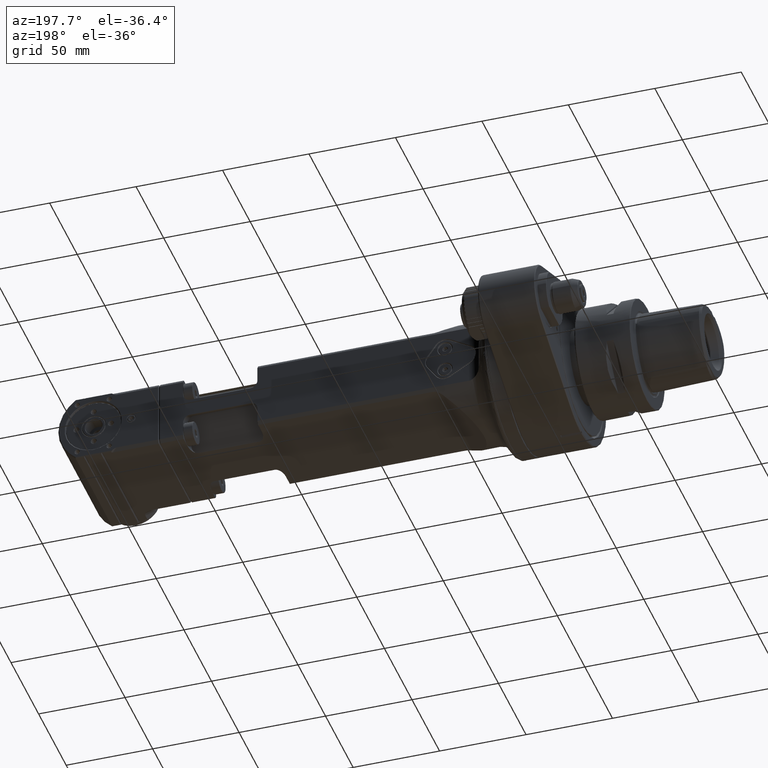
[diagram: clean part render]
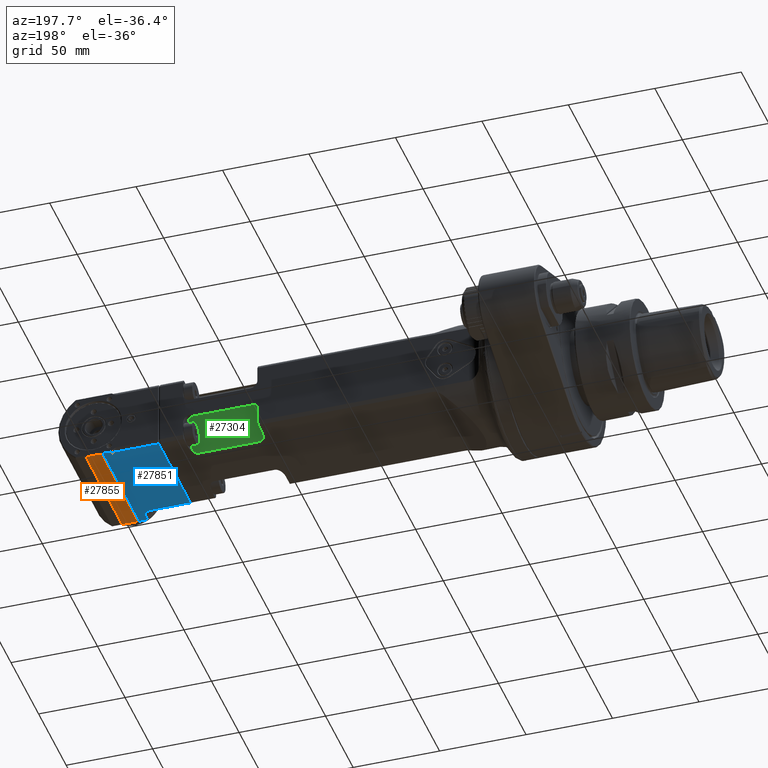
[diagram: same view with three faces highlighted in distinct colors, each labeled with its STEP entity id]
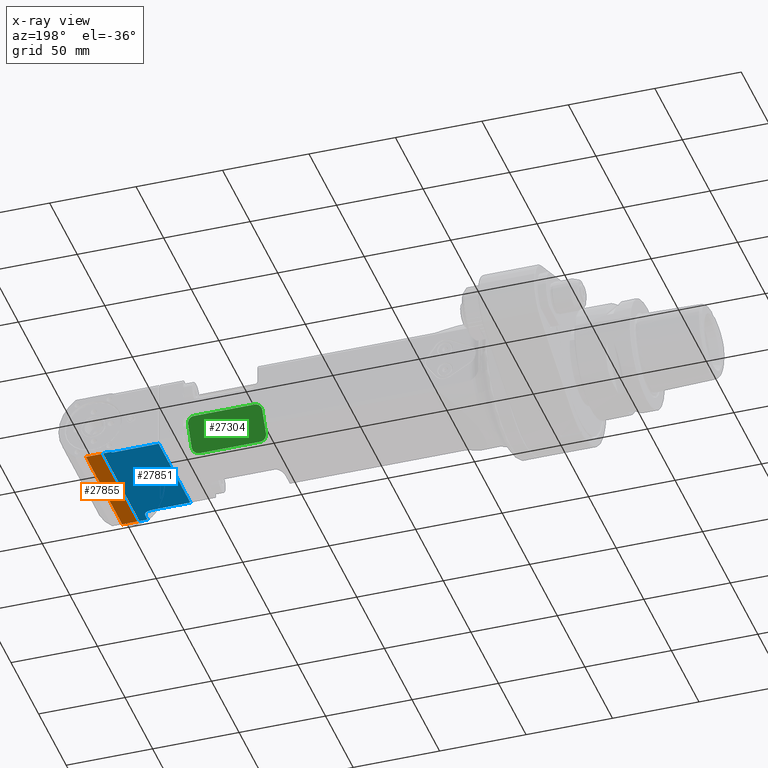
[diagram: x-ray of the same camera — body ghosted, the three highlighted faces saturated]
A machine part, auxiliary view with three faces highlighted in distinct colors.
The next image is the same camera in x-ray (body ghosted, the three faces saturated) — at least one of them is partly hidden behind the body in this view.
Their STEP definitions:

[orange] entity #27855 — the highlighted planar face has unit normal (-0, 0, 1).
#3414=FACE_OUTER_BOUND('',#5086,.T.);
#5086=EDGE_LOOP('',(#23690,#23691,#23692,#23693));
#6451=LINE('',#50856,#9055);
#6452=LINE('',#50859,#9056);
#7713=LINE('',#54464,#10317);
#7714=LINE('',#54466,#10318);
#9055=VECTOR('',#34252,8.8);
#9056=VECTOR('',#34255,65.8);
#10317=VECTOR('',#36672,65.8);
#10318=VECTOR('',#36675,8.8);
#11896=VERTEX_POINT('',#50852);
#11897=VERTEX_POINT('',#50854);
#11898=VERTEX_POINT('',#50858);
#12835=VERTEX_POINT('',#54462);
#15145=EDGE_CURVE('',#11897,#11896,#6451,.T.);
#15146=EDGE_CURVE('',#11896,#11898,#6452,.T.);
#16570=EDGE_CURVE('',#11897,#12835,#7713,.T.);
#16571=EDGE_CURVE('',#11898,#12835,#7714,.T.);
#23690=ORIENTED_EDGE('',*,*,#15145,.F.);
#23691=ORIENTED_EDGE('',*,*,#16570,.T.);
#23692=ORIENTED_EDGE('',*,*,#16571,.F.);
#23693=ORIENTED_EDGE('',*,*,#15146,.F.);
#26533=PLANE('',#30136);
#27855=ADVANCED_FACE('',(#3414),#26533,.F.);
#30136=AXIS2_PLACEMENT_3D('',#54465,#36673,#36674);
#34252=DIRECTION('',(0.,1.,0.));
#34255=DIRECTION('',(1.,0.,0.));
#36672=DIRECTION('',(1.,0.,0.));
#36673=DIRECTION('center_axis',(0.,0.,-1.));
#36674=DIRECTION('ref_axis',(0.,-1.,0.));
#36675=DIRECTION('',(0.,-1.,0.));
#50852=CARTESIAN_POINT('',(-36.4,269.4,20.1));
#50854=CARTESIAN_POINT('',(-36.4,260.6,20.1));
#50856=CARTESIAN_POINT('',(-36.4,260.6,20.1));
#50858=CARTESIAN_POINT('',(29.4,269.4,20.1));
#50859=CARTESIAN_POINT('',(-36.4,269.4,20.1));
#54462=CARTESIAN_POINT('',(29.4,260.6,20.1));
#54464=CARTESIAN_POINT('',(-36.4,260.6,20.1));
#54465=CARTESIAN_POINT('Origin',(-37.,269.4,20.1));
#54466=CARTESIAN_POINT('',(29.4,269.4,20.1));

[blue] entity #27851 — the highlighted planar face has unit normal (0, -0, -1).
#359=B_SPLINE_CURVE_WITH_KNOTS('',3,(#54373,#54374,#54375,#54376,#54377,
#54378,#54379,#54380,#54381,#54382,#54383,#54384),.UNSPECIFIED.,.F.,.F.,
(4,2,2,2,2,4),(1.0000001164299E-6,0.117744469966522,0.2263129312684,0.370935934495753,
0.54132729228853,0.74186469075418),.UNSPECIFIED.);
#360=B_SPLINE_CURVE_WITH_KNOTS('',3,(#54386,#54387,#54388,#54389,#54390,
#54391,#54392,#54393,#54394,#54395,#54396,#54397,#54398,#54399,#54400,#54401,
#54402,#54403,#54404,#54405,#54406,#54407,#54408,#54409,#54410,#54411,#54412,
#54413,#54414,#54415,#54416,#54417,#54418,#54419,#54420,#54421,#54422,#54423,
#54424,#54425,#54426,#54427,#54428,#54429,#54430,#54431,#54432,#54433,#54434,
#54435,#54436,#54437,#54438,#54439,#54440,#54441,#54442,#54443,#54444,#54445,
#54446,#54447,#54448,#54449),.UNSPECIFIED.,.F.,.F.,(4,3,3,3,3,3,3,3,3,3,
3,3,3,3,3,3,3,3,3,3,3,4),(0.,0.05,0.1,0.15,0.2,0.25,0.3,0.35,0.4,0.45,0.5,
0.55,0.6,0.618025400904375,0.65,0.7,0.75,0.8,0.85,0.9,0.95,1.),
 .UNSPECIFIED.);
#3410=FACE_OUTER_BOUND('',#5082,.T.);
#5082=EDGE_LOOP('',(#23668,#23669,#23670,#23671,#23672,#23673,#23674,#23675,
#23676,#23677));
#6410=LINE('',#50487,#9014);
#6431=LINE('',#50693,#9035);
#7703=LINE('',#54366,#10307);
#7704=LINE('',#54370,#10308);
#7705=LINE('',#54372,#10309);
#7706=LINE('',#54451,#10310);
#7707=LINE('',#54453,#10311);
#7708=LINE('',#54454,#10312);
#9014=VECTOR('',#34121,10.);
#9035=VECTOR('',#34208,10.);
#10307=VECTOR('',#36652,10.);
#10308=VECTOR('',#36655,10.);
#10309=VECTOR('',#36656,10.);
#10310=VECTOR('',#36657,0.1170117339723);
#10311=VECTOR('',#36658,4.75);
#10312=VECTOR('',#36659,66.);
#11831=VERTEX_POINT('',#50418);
#11852=VERTEX_POINT('',#50486);
#11872=VERTEX_POINT('',#50692);
#12828=VERTEX_POINT('',#54352);
#12829=VERTEX_POINT('',#54368);
#12830=VERTEX_POINT('',#54369);
#12831=VERTEX_POINT('',#54371);
#12832=VERTEX_POINT('',#54385);
#12833=VERTEX_POINT('',#54450);
#12834=VERTEX_POINT('',#54452);
#15074=EDGE_CURVE('',#11852,#11831,#6410,.T.);
#15113=EDGE_CURVE('',#11852,#11872,#6431,.T.);
#16557=EDGE_CURVE('',#11831,#12828,#7703,.T.);
#16558=EDGE_CURVE('',#12829,#12830,#7704,.T.);
#16559=EDGE_CURVE('',#12830,#12831,#7705,.T.);
#16560=EDGE_CURVE('',#12831,#11872,#359,.T.);
#16561=EDGE_CURVE('',#12828,#12832,#360,.T.);
#16562=EDGE_CURVE('',#12832,#12833,#7706,.T.);
#16563=EDGE_CURVE('',#12834,#12833,#7707,.T.);
#16564=EDGE_CURVE('',#12829,#12834,#7708,.T.);
#23668=ORIENTED_EDGE('',*,*,#16558,.T.);
#23669=ORIENTED_EDGE('',*,*,#16559,.T.);
#23670=ORIENTED_EDGE('',*,*,#16560,.T.);
#23671=ORIENTED_EDGE('',*,*,#15113,.F.);
#23672=ORIENTED_EDGE('',*,*,#15074,.T.);
#23673=ORIENTED_EDGE('',*,*,#16557,.T.);
#23674=ORIENTED_EDGE('',*,*,#16561,.T.);
#23675=ORIENTED_EDGE('',*,*,#16562,.T.);
#23676=ORIENTED_EDGE('',*,*,#16563,.F.);
#23677=ORIENTED_EDGE('',*,*,#16564,.F.);
#26529=PLANE('',#30131);
#27851=ADVANCED_FACE('',(#3410),#26529,.T.);
#30131=AXIS2_PLACEMENT_3D('',#54367,#36653,#36654);
#34121=DIRECTION('',(1.,0.,0.));
#34208=DIRECTION('',(0.,1.,0.));
#36652=DIRECTION('',(0.,1.,0.));
#36653=DIRECTION('center_axis',(0.,0.,1.));
#36654=DIRECTION('ref_axis',(0.,-1.,0.));
#36655=DIRECTION('',(0.,-1.,0.));
#36656=DIRECTION('',(1.,0.,0.));
#36657=DIRECTION('',(0.999999999999999,3.967709970485E-8,-6.51693630069599E-9));
#36658=DIRECTION('',(0.,-1.,0.));
#36659=DIRECTION('',(1.,0.,0.));
#50418=CARTESIAN_POINT('',(28.7228132359344,227.499999998978,19.9999999986768));
#50486=CARTESIAN_POINT('',(-28.7228132356617,227.499999999313,19.9999999989459));
#50487=CARTESIAN_POINT('',(-25.,227.5,20.));
#50692=CARTESIAN_POINT('',(-28.7228011514097,249.449631099454,20.000000011776));
#50693=CARTESIAN_POINT('',(-28.7228132326901,152.65,20.));
#54352=CARTESIAN_POINT('',(28.722813180533,253.8498009654,19.9999999936971));
#54366=CARTESIAN_POINT('',(28.7228132326901,152.65,20.));
#54367=CARTESIAN_POINT('Origin',(-50.,284.8639702343,20.));
#54368=CARTESIAN_POINT('',(-36.5,259.5,20.));
#54369=CARTESIAN_POINT('',(-36.4999857299406,254.750019458717,20.0000064861694));
#54370=CARTESIAN_POINT('',(-36.5,271.0363974235,20.));
#54371=CARTESIAN_POINT('',(-32.6490411256087,254.749999217187,20.0000000233174));
#54372=CARTESIAN_POINT('',(-40.,254.75,20.));
#54373=CARTESIAN_POINT('Ctrl Pts',(-32.6490411256038,254.749998336402,20.));
#54374=CARTESIAN_POINT('Ctrl Pts',(-32.2565623633449,254.750000513131,20.));
#54375=CARTESIAN_POINT('Ctrl Pts',(-31.8672954751902,254.698964569434,20.0000000000134));
#54376=CARTESIAN_POINT('Ctrl Pts',(-31.1477672152041,254.472880634413,20.0000000000134));
#54377=CARTESIAN_POINT('Ctrl Pts',(-30.8280250801159,254.311794516471,20.));
#54378=CARTESIAN_POINT('Ctrl Pts',(-30.1487895390523,253.811508209743,20.));
#54379=CARTESIAN_POINT('Ctrl Pts',(-29.8338633350509,253.447505506224,20.));
#54380=CARTESIAN_POINT('Ctrl Pts',(-29.2865955873285,252.551559865546,20.));
#54381=CARTESIAN_POINT('Ctrl Pts',(-29.0824017982052,252.007341165732,20.));
#54382=CARTESIAN_POINT('Ctrl Pts',(-28.7897362145902,250.803997130851,20.));
#54383=CARTESIAN_POINT('Ctrl Pts',(-28.7227821456055,250.120979362587,20.));
#54384=CARTESIAN_POINT('Ctrl Pts',(-28.7227890977493,249.449631099329,20.));
#54385=CARTESIAN_POINT('',(29.38298826603,254.749999993858,20.0000000014076));
#54386=CARTESIAN_POINT('Ctrl Pts',(28.7228131268722,253.8498009654,19.9999999881811));
#54387=CARTESIAN_POINT('Ctrl Pts',(28.7228131343087,253.887076092656,19.9999999868156));
#54388=CARTESIAN_POINT('Ctrl Pts',(28.7239891388079,253.922762435168,20.0000000141489));
#54389=CARTESIAN_POINT('Ctrl Pts',(28.7261703770893,253.956845994862,20.0000000089895));
#54390=CARTESIAN_POINT('Ctrl Pts',(28.7283516153706,253.990929554557,20.0000000038301));
#54391=CARTESIAN_POINT('Ctrl Pts',(28.7315374362197,254.023410434834,19.9999997833918));
#54392=CARTESIAN_POINT('Ctrl Pts',(28.7355635983038,254.054332042113,20.0000000087817));
#54393=CARTESIAN_POINT('Ctrl Pts',(28.739589760388,254.085253649391,20.0000002341715));
#54394=CARTESIAN_POINT('Ctrl Pts',(28.7444536828357,254.114616262279,20.0000002732139));
#54395=CARTESIAN_POINT('Ctrl Pts',(28.7500370761238,254.142610527551,20.0000000076966));
#54396=CARTESIAN_POINT('Ctrl Pts',(28.7556204694119,254.170604792823,19.9999997421794));
#54397=CARTESIAN_POINT('Ctrl Pts',(28.7619257719193,254.197230173364,19.9999999615488));
#54398=CARTESIAN_POINT('Ctrl Pts',(28.7688330718059,254.222539227975,20.0000000061301));
#54399=CARTESIAN_POINT('Ctrl Pts',(28.7757403716925,254.247848282587,20.0000000507114));
#54400=CARTESIAN_POINT('Ctrl Pts',(28.7832496180382,254.271841120301,19.9999998359497));
#54401=CARTESIAN_POINT('Ctrl Pts',(28.7912498223266,254.294585838646,20.0000000044671));
#54402=CARTESIAN_POINT('Ctrl Pts',(28.7992500266149,254.317330556991,20.0000001729844));
#54403=CARTESIAN_POINT('Ctrl Pts',(28.8077394970343,254.338827735774,20.0000000333396));
#54404=CARTESIAN_POINT('Ctrl Pts',(28.8166638594705,254.359240638057,20.0000000029842));
#54405=CARTESIAN_POINT('Ctrl Pts',(28.8255882219068,254.379653540339,19.9999999726288));
#54406=CARTESIAN_POINT('Ctrl Pts',(28.8349478569391,254.39898191453,20.0000002884007));
#54407=CARTESIAN_POINT('Ctrl Pts',(28.8447071537766,254.417346935079,20.000000001816));
#54408=CARTESIAN_POINT('Ctrl Pts',(28.8544664506141,254.435711955629,19.9999997152312));
#54409=CARTESIAN_POINT('Ctrl Pts',(28.8646272430297,254.45311269308,19.9999997783839));
#54410=CARTESIAN_POINT('Ctrl Pts',(28.8751036404627,254.469559130483,20.000000000995));
#54411=CARTESIAN_POINT('Ctrl Pts',(28.8855800378958,254.486005567886,20.0000002236061));
#54412=CARTESIAN_POINT('Ctrl Pts',(28.8963711755911,254.501498303299,20.0000000534131));
#54413=CARTESIAN_POINT('Ctrl Pts',(28.9074283186268,254.516108287162,20.0000000004818));
#54414=CARTESIAN_POINT('Ctrl Pts',(28.9184854616626,254.530718271025,19.9999999475506));
#54415=CARTESIAN_POINT('Ctrl Pts',(28.9298082452037,254.544445777503,19.9999997662508));
#54416=CARTESIAN_POINT('Ctrl Pts',(28.9413783094155,254.557377664167,20.0000000001986));
#54417=CARTESIAN_POINT('Ctrl Pts',(28.9529483736272,254.570309550831,20.0000002341464));
#54418=CARTESIAN_POINT('Ctrl Pts',(28.9647650798057,254.582446317021,20.0000004389128));
#54419=CARTESIAN_POINT('Ctrl Pts',(28.9768665304036,254.593893562542,20.0000000000604));
#54420=CARTESIAN_POINT('Ctrl Pts',(28.9889679810014,254.605340808064,19.999999561208));
#54421=CARTESIAN_POINT('Ctrl Pts',(29.001355451435,254.616097225356,19.9999995523427));
#54422=CARTESIAN_POINT('Ctrl Pts',(29.0139899837581,254.626174367874,20.000000000008));
#54423=CARTESIAN_POINT('Ctrl Pts',(29.0185448339654,254.629807258551,20.0000001613949));
#54424=CARTESIAN_POINT('Ctrl Pts',(29.0231317561532,254.633351899231,20.0000003506954));
#54425=CARTESIAN_POINT('Ctrl Pts',(29.0277535332586,254.63681195954,20.0000004205129));
#54426=CARTESIAN_POINT('Ctrl Pts',(29.0359519345501,254.642949633914,20.0000005443595));
#54427=CARTESIAN_POINT('Ctrl Pts',(29.0442599298184,254.648821326432,20.0000001839282));
#54428=CARTESIAN_POINT('Ctrl Pts',(29.0526944532148,254.654445485301,19.9999999999867));
#54429=CARTESIAN_POINT('Ctrl Pts',(29.0658838654903,254.663240214599,19.9999997123498));
#54430=CARTESIAN_POINT('Ctrl Pts',(29.0793827819454,254.671429375839,20.0000000562188));
#54431=CARTESIAN_POINT('Ctrl Pts',(29.0931979850361,254.679020212959,19.9999999999822));
#54432=CARTESIAN_POINT('Ctrl Pts',(29.1070131881269,254.686611050079,19.9999999437456));
#54433=CARTESIAN_POINT('Ctrl Pts',(29.1211448756168,254.69360338895,19.9999996405831));
#54434=CARTESIAN_POINT('Ctrl Pts',(29.1355860929018,254.699994996376,19.9999999999829));
#54435=CARTESIAN_POINT('Ctrl Pts',(29.1500273101867,254.706386603802,20.0000003593827));
#54436=CARTESIAN_POINT('Ctrl Pts',(29.1647773933888,254.712178849904,20.0000004334746));
#54437=CARTESIAN_POINT('Ctrl Pts',(29.1799330418322,254.717392270734,19.999999999989));
#54438=CARTESIAN_POINT('Ctrl Pts',(29.1950886902755,254.722605691565,19.9999995665034));
#54439=CARTESIAN_POINT('Ctrl Pts',(29.2106504510551,254.727238694634,19.9999996568065));
#54440=CARTESIAN_POINT('Ctrl Pts',(29.2266131934845,254.731257924852,19.9999999999973));
#54441=CARTESIAN_POINT('Ctrl Pts',(29.2425759359138,254.73527715507,20.0000003431881));
#54442=CARTESIAN_POINT('Ctrl Pts',(29.258939372054,254.738683911799,20.0000001516268));
#54443=CARTESIAN_POINT('Ctrl Pts',(29.2757866580017,254.741454546673,20.0000000000048));
#54444=CARTESIAN_POINT('Ctrl Pts',(29.2926339439494,254.744225181548,19.9999998483828));
#54445=CARTESIAN_POINT('Ctrl Pts',(29.3099651233727,254.746359049463,20.0000000911806));
#54446=CARTESIAN_POINT('Ctrl Pts',(29.3278268319678,254.747802983567,20.0000000000143));
#54447=CARTESIAN_POINT('Ctrl Pts',(29.3456885405628,254.74924691767,19.999999908848));
#54448=CARTESIAN_POINT('Ctrl Pts',(29.3640808744727,254.74999999389,20.0000000027479));
#54449=CARTESIAN_POINT('Ctrl Pts',(29.38298826603,254.749999990775,20.0000000027028));
#54450=CARTESIAN_POINT('',(29.5,254.75,20.));
#54451=CARTESIAN_POINT('',(29.38298826603,254.7499999954,20.00000000076));
#54452=CARTESIAN_POINT('',(29.5,259.5,20.));
#54453=CARTESIAN_POINT('',(29.5,259.5,20.));
#54454=CARTESIAN_POINT('',(-36.5,259.5,20.));

[green] entity #27304 — the highlighted planar face has unit normal (-0, 0.8671, -0.4981).
#1603=CIRCLE('',#29496,4.);
#1604=CIRCLE('',#29498,4.);
#1605=CIRCLE('',#29499,4.);
#1606=CIRCLE('',#29500,4.);
#2863=FACE_OUTER_BOUND('',#4493,.T.);
#4493=EDGE_LOOP('',(#20646,#20647,#20648,#20649,#20650,#20651,#20652,#20653));
#6393=LINE('',#50436,#8997);
#6395=LINE('',#50448,#8999);
#6396=LINE('',#50451,#9000);
#6397=LINE('',#50454,#9001);
#8997=VECTOR('',#34068,13.0000000000003);
#8999=VECTOR('',#34080,13.0000000000003);
#9000=VECTOR('',#34083,35.);
#9001=VECTOR('',#34086,35.);
#11834=VERTEX_POINT('',#50430);
#11836=VERTEX_POINT('',#50434);
#11838=VERTEX_POINT('',#50440);
#11839=VERTEX_POINT('',#50444);
#11840=VERTEX_POINT('',#50445);
#11841=VERTEX_POINT('',#50447);
#11842=VERTEX_POINT('',#50449);
#11843=VERTEX_POINT('',#50452);
#15048=EDGE_CURVE('',#11836,#11834,#6393,.T.);
#15050=EDGE_CURVE('',#11838,#11834,#1603,.T.);
#15052=EDGE_CURVE('',#11839,#11840,#1604,.T.);
#15053=EDGE_CURVE('',#11840,#11841,#6395,.T.);
#15054=EDGE_CURVE('',#11841,#11842,#1605,.T.);
#15055=EDGE_CURVE('',#11838,#11842,#6396,.T.);
#15056=EDGE_CURVE('',#11836,#11843,#1606,.T.);
#15057=EDGE_CURVE('',#11843,#11839,#6397,.T.);
#20646=ORIENTED_EDGE('',*,*,#15052,.T.);
#20647=ORIENTED_EDGE('',*,*,#15053,.T.);
#20648=ORIENTED_EDGE('',*,*,#15054,.T.);
#20649=ORIENTED_EDGE('',*,*,#15055,.F.);
#20650=ORIENTED_EDGE('',*,*,#15050,.T.);
#20651=ORIENTED_EDGE('',*,*,#15048,.F.);
#20652=ORIENTED_EDGE('',*,*,#15056,.T.);
#20653=ORIENTED_EDGE('',*,*,#15057,.T.);
#26071=PLANE('',#29497);
#27304=ADVANCED_FACE('',(#2863),#26071,.T.);
#29496=AXIS2_PLACEMENT_3D('',#50441,#34073,#34074);
#29497=AXIS2_PLACEMENT_3D('',#50443,#34076,#34077);
#29498=AXIS2_PLACEMENT_3D('',#50446,#34078,#34079);
#29499=AXIS2_PLACEMENT_3D('',#50450,#34081,#34082);
#29500=AXIS2_PLACEMENT_3D('',#50453,#34084,#34085);
#34068=DIRECTION('',(0.49812446056829,0.,-0.867105542470783));
#34073=DIRECTION('center_axis',(0.867105542470783,0.,0.49812446056829));
#34074=DIRECTION('ref_axis',(0.49812446056829,0.,-0.867105542470783));
#34076=DIRECTION('center_axis',(0.867105542470783,0.,0.49812446056829));
#34077=DIRECTION('ref_axis',(0.49812446056829,0.,-0.867105542470783));
#34078=DIRECTION('center_axis',(0.867105542470783,0.,0.49812446056829));
#34079=DIRECTION('ref_axis',(-0.49812446056829,0.,0.867105542470783));
#34080=DIRECTION('',(0.49812446056829,0.,-0.867105542470783));
#34081=DIRECTION('center_axis',(0.867105542470783,0.,0.49812446056829));
#34082=DIRECTION('ref_axis',(0.,-1.,0.));
#34083=DIRECTION('',(0.,-1.,0.));
#34084=DIRECTION('center_axis',(0.867105542470783,0.,0.49812446056829));
#34085=DIRECTION('ref_axis',(0.,1.,0.));
#34086=DIRECTION('',(0.,-1.,0.));
#50430=CARTESIAN_POINT('',(21.01347261434,213.,4.57536541559));
#50434=CARTESIAN_POINT('',(14.53785462696,213.,15.84773746771));
#50436=CARTESIAN_POINT('',(14.53785462696,213.,15.84773746771));
#50440=CARTESIAN_POINT('',(23.00597045662,209.,1.106943245707));
#50441=CARTESIAN_POINT('Origin',(21.01347261434,209.,4.57536541559));
#50443=CARTESIAN_POINT('Origin',(12.54535678468,213.,19.31615963759));
#50444=CARTESIAN_POINT('',(12.54535678468,174.,19.31615963759));
#50445=CARTESIAN_POINT('',(14.53785462696,170.,15.84773746771));
#50446=CARTESIAN_POINT('Origin',(14.53785462696,174.,15.84773746771));
#50447=CARTESIAN_POINT('',(21.01347261434,170.,4.57536541559));
#50448=CARTESIAN_POINT('',(14.53785462696,170.,15.84773746771));
#50449=CARTESIAN_POINT('',(23.00597045662,174.,1.106943245707));
#50450=CARTESIAN_POINT('Origin',(21.01347261434,174.,4.57536541559));
#50451=CARTESIAN_POINT('',(23.00597045662,209.,1.106943245707));
#50452=CARTESIAN_POINT('',(12.54535678468,209.,19.31615963759));
#50453=CARTESIAN_POINT('Origin',(14.53785462696,209.,15.84773746771));
#50454=CARTESIAN_POINT('',(12.54535678468,209.,19.31615963759));